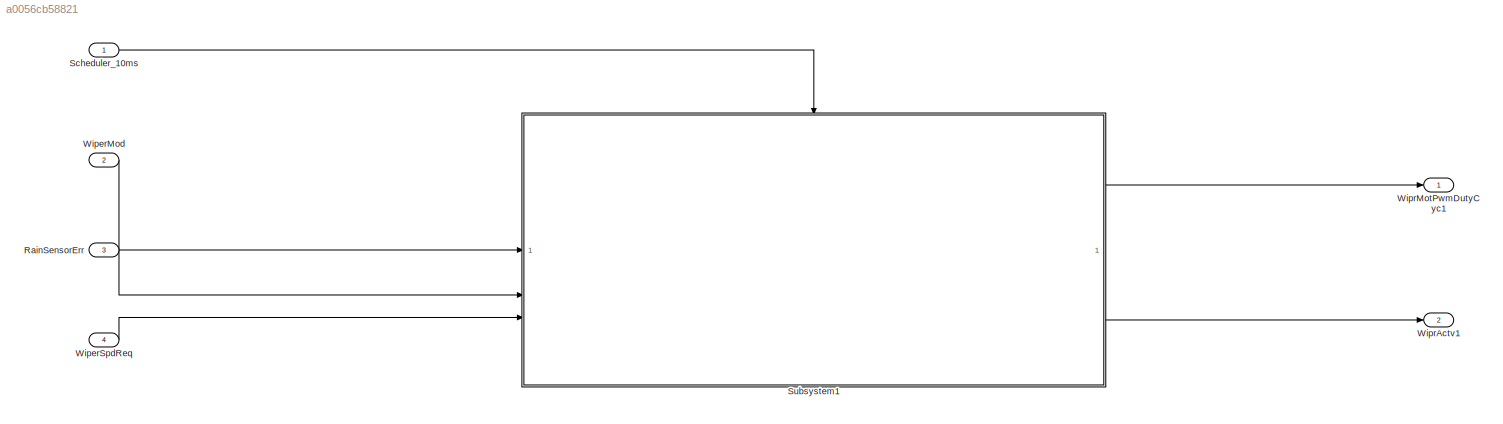
MODEL slx_a0056cb58821
KIND model
CONFIG AbsTol = auto
CONFIG EnableMultiTasking = on
CONFIG FixedStep = auto
CONFIG MaxStep = auto
CONFIG MinStep = auto
CONFIG RelTol = 1e-3
CONFIG SampleTimeConstraint = Unconstrained
CONFIG SolverName = FixedStepDiscrete
CONFIG StartTime = 0.0
CONFIG StopTime = 20.0
BLOCK [Inport] RainSensorErr
  OutDataTypeStr = double
  Port = 3
  PortDimensions = 1
  SamplingMode = Sample based
  SignalType = real
BLOCK [Inport] Scheduler_10ms
  OutputFunctionCall = on
  PortDimensions = 1
  SamplingMode = Sample based
  SignalType = real
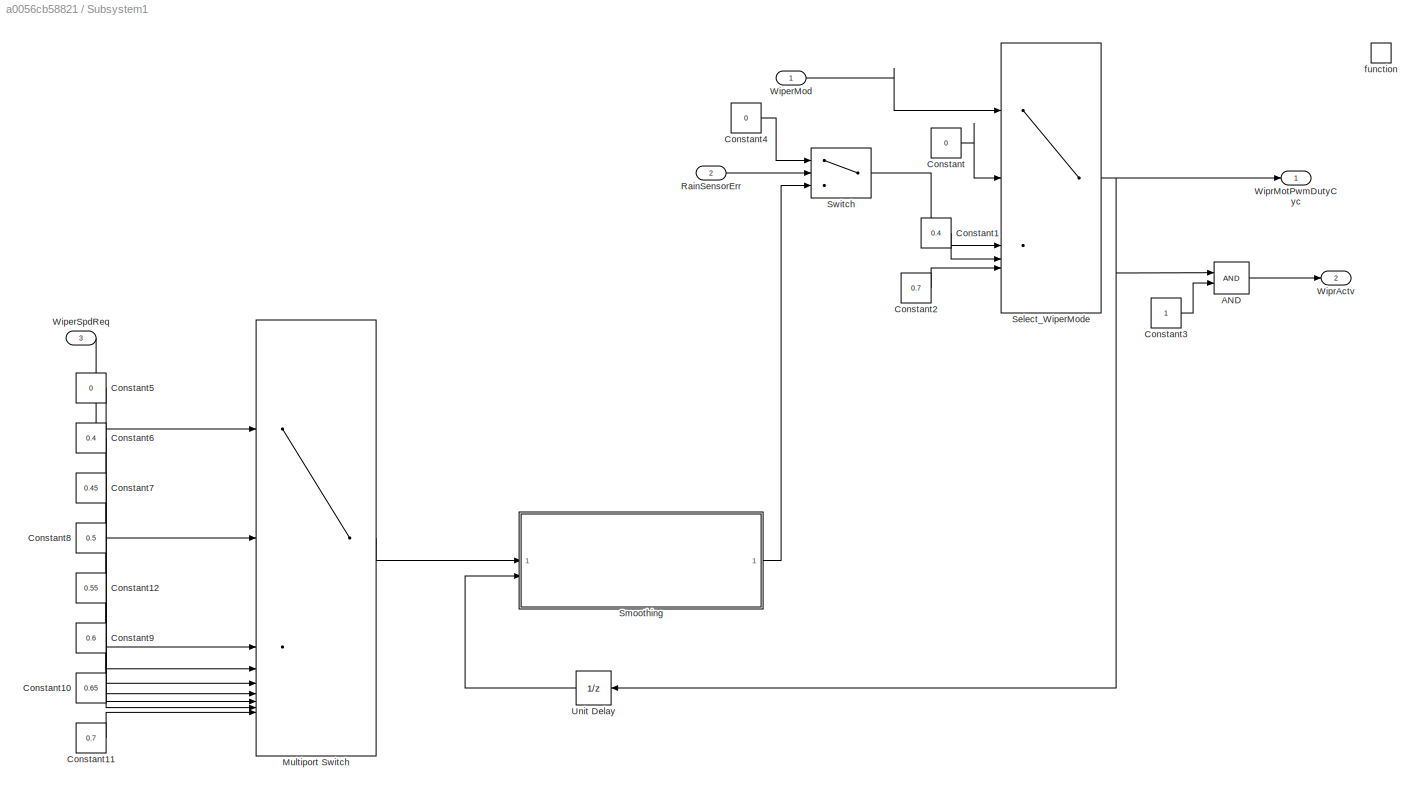
BLOCK [SubSystem] Subsystem1
BLOCK [Logic] Subsystem1/AND
  AllPortsSameDT = off
  IconShape = distinctive
  OutDataTypeStr = boolean
BLOCK [Constant] Subsystem1/Constant
  Value = 0
BLOCK [Constant] Subsystem1/Constant1
  Value = 0.4
BLOCK [Constant] Subsystem1/Constant10
  Value = 0.65
BLOCK [Constant] Subsystem1/Constant11
  Value = 0.7
BLOCK [Constant] Subsystem1/Constant12
  Value = 0.55
BLOCK [Constant] Subsystem1/Constant2
  Value = 0.7
BLOCK [Constant] Subsystem1/Constant3
BLOCK [Constant] Subsystem1/Constant4
  Value = 0
BLOCK [Constant] Subsystem1/Constant5
  Value = 0
BLOCK [Constant] Subsystem1/Constant6
  Value = 0.4
BLOCK [Constant] Subsystem1/Constant7
  Value = 0.45
BLOCK [Constant] Subsystem1/Constant8
  Value = 0.5
BLOCK [Constant] Subsystem1/Constant9
  Value = 0.6
BLOCK [MultiPortSwitch] Subsystem1/Multiport Switch
  DataPortOrder = Zero-based contiguous
  InputSameDT = off
  Inputs = 8
  SaturateOnIntegerOverflow = off
  zeroidx = on
BLOCK [Inport] Subsystem1/RainSensorErr
  Port = 2
BLOCK [MultiPortSwitch] Subsystem1/Select_WiperMode
  DataPortOrder = Zero-based contiguous
  InputSameDT = off
  Inputs = 4
  SaturateOnIntegerOverflow = off
  zeroidx = on
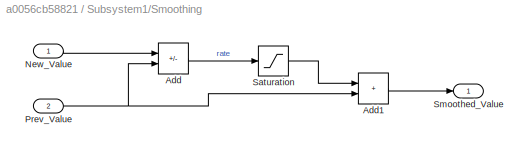
BLOCK [SubSystem] Subsystem1/Smoothing
BLOCK [Sum] Subsystem1/Smoothing/Add
  IconShape = rectangular
  Inputs = +-
BLOCK [Sum] Subsystem1/Smoothing/Add1
  IconShape = rectangular
BLOCK [Inport] Subsystem1/Smoothing/New_Value
BLOCK [Inport] Subsystem1/Smoothing/Prev_Value
  Port = 2
BLOCK [Saturate] Subsystem1/Smoothing/Saturation
  LowerLimit = -0.005
  UpperLimit = 0.005
BLOCK [Outport] Subsystem1/Smoothing/Smoothed_Value
BLOCK [Switch] Subsystem1/Switch
  Criteria = u2 > Threshold
  InputSameDT = off
  OutDataTypeStr = boolean
  SaturateOnIntegerOverflow = off
BLOCK [UnitDelay] Subsystem1/Unit Delay
  HasFrameUpgradeWarning = on
  SampleTime = -1
BLOCK [Inport] Subsystem1/WiperMod
BLOCK [Inport] Subsystem1/WiperSpdReq
  Port = 3
BLOCK [Outport] Subsystem1/WiprActv
  Port = 2
BLOCK [Outport] Subsystem1/WiprMotPwmDutyCyc
BLOCK [TriggerPort] Subsystem1/function
  StatesWhenEnabling = held
  TriggerType = function-call
  VariantControl = (inherit)
BLOCK [Inport] WiperMod
  OutDataTypeStr = double
  Port = 2
  PortDimensions = 1
  SamplingMode = Sample based
  SignalType = real
BLOCK [Inport] WiperSpdReq
  OutDataTypeStr = double
  Port = 4
  PortDimensions = 1
  SamplingMode = Sample based
  SignalType = real
BLOCK [Outport] WiprActv1
  OutDataTypeStr = boolean
  Port = 2
  PortDimensions = 1
  SamplingMode = Sample based
  SignalType = real
BLOCK [Outport] WiprMotPwmDutyCyc1
  OutDataTypeStr = double
  PortDimensions = 1
  SamplingMode = Sample based
  SignalType = real
LINE RainSensorErr:1 -> Subsystem1:2
LINE Scheduler_10ms:1 -> Subsystem1:trigger
LINE Subsystem1/AND:1 -> Subsystem1/WiprActv:1
LINE Subsystem1/Constant10:1 -> Subsystem1/Multiport Switch:8
LINE Subsystem1/Constant11:1 -> Subsystem1/Multiport Switch:9
LINE Subsystem1/Constant12:1 -> Subsystem1/Multiport Switch:6
LINE Subsystem1/Constant1:1 -> Subsystem1/Select_WiperMode:4
LINE Subsystem1/Constant2:1 -> Subsystem1/Select_WiperMode:5
LINE Subsystem1/Constant3:1 -> Subsystem1/AND:2
LINE Subsystem1/Constant4:1 -> Subsystem1/Switch:1
LINE Subsystem1/Constant5:1 -> Subsystem1/Multiport Switch:2
LINE Subsystem1/Constant6:1 -> Subsystem1/Multiport Switch:3
LINE Subsystem1/Constant7:1 -> Subsystem1/Multiport Switch:4
LINE Subsystem1/Constant8:1 -> Subsystem1/Multiport Switch:5
LINE Subsystem1/Constant9:1 -> Subsystem1/Multiport Switch:7
LINE Subsystem1/Constant:1 -> Subsystem1/Select_WiperMode:2
LINE Subsystem1/Multiport Switch:1 -> Subsystem1/Smoothing:1
LINE Subsystem1/RainSensorErr:1 -> Subsystem1/Switch:2
NET Subsystem1/Select_WiperMode:1 -> Subsystem1/AND:1, Subsystem1/Unit Delay:1, Subsystem1/WiprMotPwmDutyCyc:1
LINE Subsystem1/Smoothing/Add1:1 -> Subsystem1/Smoothing/Smoothed_Value:1
LINE Subsystem1/Smoothing/Add:1 -> Subsystem1/Smoothing/Saturation:1
LINE Subsystem1/Smoothing/New_Value:1 -> Subsystem1/Smoothing/Add:1
NET Subsystem1/Smoothing/Prev_Value:1 -> Subsystem1/Smoothing/Add1:2, Subsystem1/Smoothing/Add:2
LINE Subsystem1/Smoothing/Saturation:1 -> Subsystem1/Smoothing/Add1:1
LINE Subsystem1/Smoothing:1 -> Subsystem1/Switch:3
LINE Subsystem1/Switch:1 -> Subsystem1/Select_WiperMode:3
LINE Subsystem1/Unit Delay:1 -> Subsystem1/Smoothing:2
LINE Subsystem1/WiperMod:1 -> Subsystem1/Select_WiperMode:1
LINE Subsystem1/WiperSpdReq:1 -> Subsystem1/Multiport Switch:1
LINE Subsystem1:1 -> WiprMotPwmDutyCyc1:1
LINE Subsystem1:2 -> WiprActv1:1
LINE WiperMod:1 -> Subsystem1:1
LINE WiperSpdReq:1 -> Subsystem1:3
note: NET lines group one-source signal fan-out (src -> all destinations, sorted); 1:1 wires keep LINE
